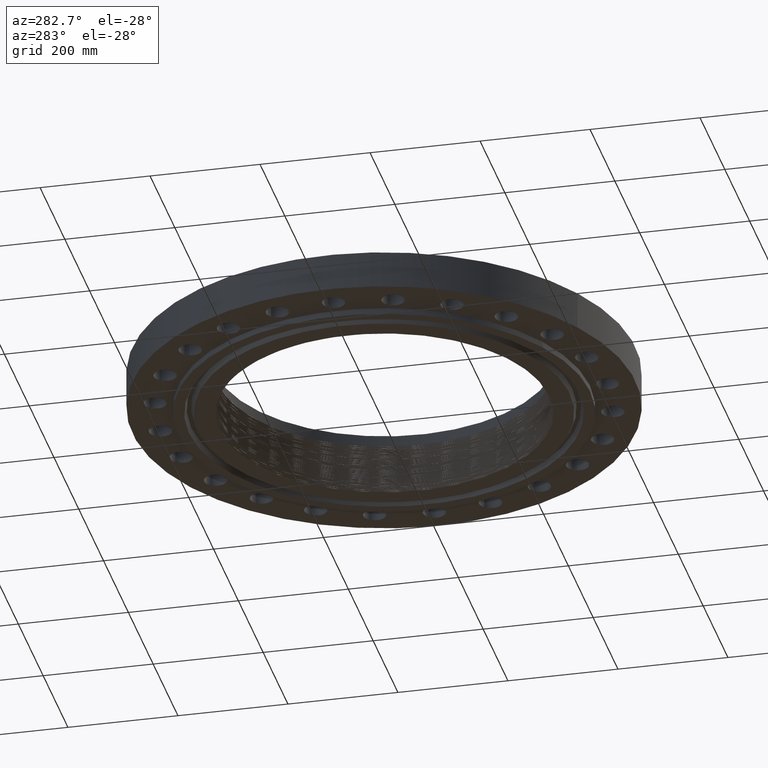
[diagram: clean part render]
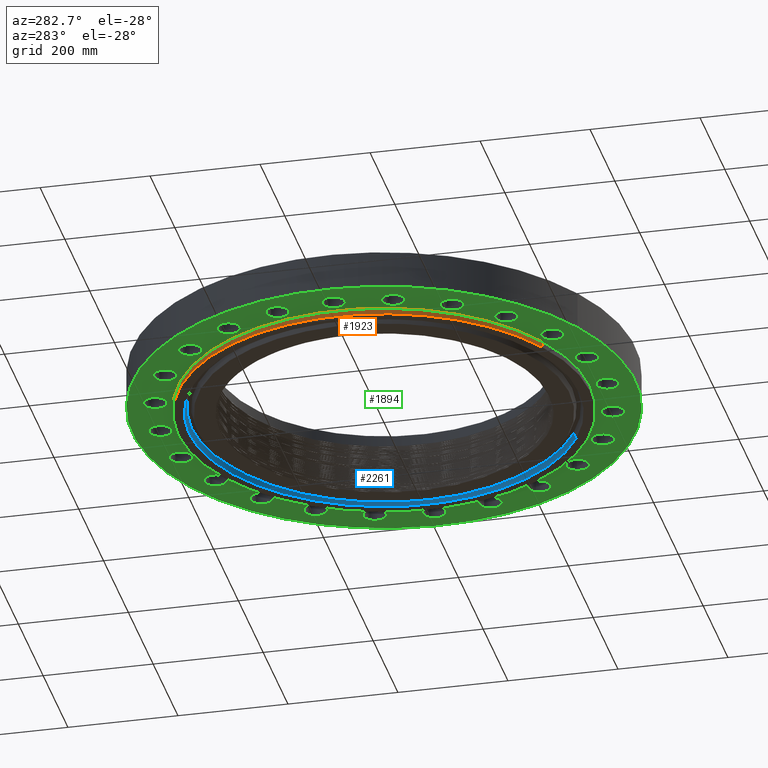
[diagram: same view with three faces highlighted in distinct colors, each labeled with its STEP entity id]
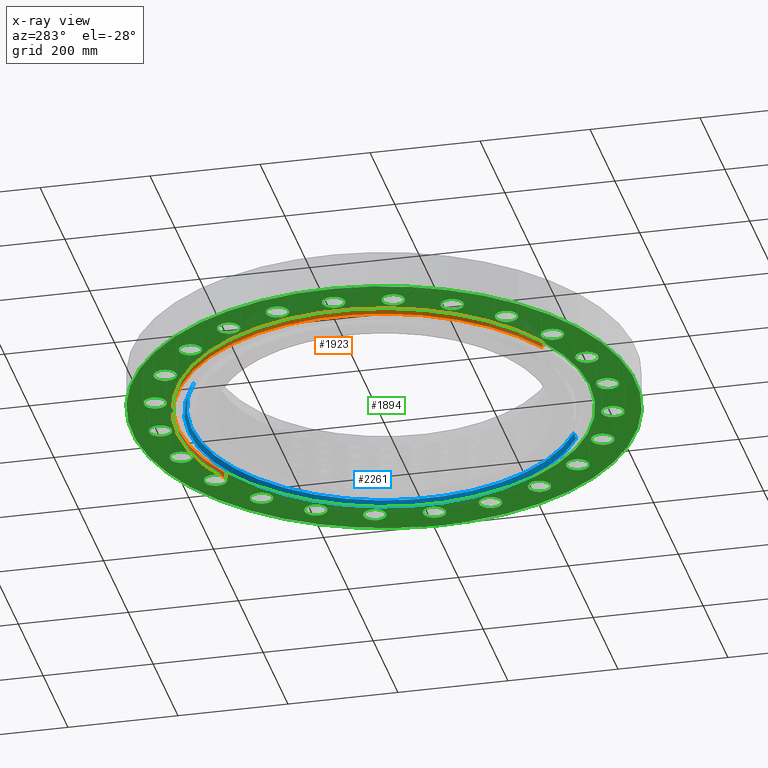
[diagram: x-ray of the same camera — body ghosted, the three highlighted faces saturated]
A machine part, auxiliary view with three faces highlighted in distinct colors.
The next image is the same camera in x-ray (body ghosted, the three faces saturated) — at least one of them is partly hidden behind the body in this view.
Their STEP definitions:

[orange] entity #1923 — the highlighted cylindrical surface (partial cylindrical patch) has radius 374.65 mm, axis along (0, 0, -1).
#406=AXIS2_PLACEMENT_3D('Circle Axis2P3D',#404,#405,$) ;
#1795=AXIS2_PLACEMENT_3D('Circle Axis2P3D',#1793,#1794,$) ;
#1898=AXIS2_PLACEMENT_3D('Cylinder Axis2P3D',#1895,#1896,#1897) ;
#399=CARTESIAN_POINT('Vertex',(7.07152669444,12.9443427879,-0.437500000002)) ;
#401=CARTESIAN_POINT('Vertex',(-7.07152669444,-12.9443427879,-0.437500000002)) ;
#404=CARTESIAN_POINT('Axis2P3D Location',(0.,0.,-0.437500000002)) ;
#1788=CARTESIAN_POINT('Vertex',(7.07152669444,12.9443427879,1.67844740731E-015)) ;
#1790=CARTESIAN_POINT('Vertex',(-7.07152669444,-12.9443427879,1.67844740731E-015)) ;
#1793=CARTESIAN_POINT('Axis2P3D Location',(0.,0.,0.)) ;
#1895=CARTESIAN_POINT('Axis2P3D Location',(0.,0.,1.84625000001)) ;
#1900=CARTESIAN_POINT('Line Origine',(7.07152669444,12.9443427879,-0.218750000001)) ;
#1905=CARTESIAN_POINT('Line Origine',(-7.07152669444,-12.9443427879,-0.218750000001)) ;
#405=DIRECTION('Axis2P3D Direction',(0.,0.,-0.0393700787402)) ;
#1794=DIRECTION('Axis2P3D Direction',(0.,0.,-0.0393700787402)) ;
#1896=DIRECTION('Axis2P3D Direction',(0.,0.,-0.0393700787402)) ;
#1897=DIRECTION('Axis2P3D XDirection',(-0.0188750212049,-0.0345504945626,0.)) ;
#1901=DIRECTION('Vector Direction',(0.,0.,-0.0393700787402)) ;
#1906=DIRECTION('Vector Direction',(0.,0.,-0.0393700787402)) ;
#1902=VECTOR('Line Direction',#1901,0.0393700787402) ;
#1907=VECTOR('Line Direction',#1906,0.0393700787402) ;
#1918=ORIENTED_EDGE('',*,*,#408,.F.) ;
#1919=ORIENTED_EDGE('',*,*,#1909,.T.) ;
#1920=ORIENTED_EDGE('',*,*,#1797,.T.) ;
#1921=ORIENTED_EDGE('',*,*,#1904,.F.) ;
#1923=ADVANCED_FACE('PartBody',(#1922),#1899,.T.) ;
#407=CIRCLE('generated circle',#406,14.7500000001) ;
#1796=CIRCLE('generated circle',#1795,14.7500000001) ;
#1899=CYLINDRICAL_SURFACE('generated cylinder',#1898,14.7500000001) ;
#408=EDGE_CURVE('',#402,#400,#407,.T.) ;
#1797=EDGE_CURVE('',#1791,#1789,#1796,.T.) ;
#1904=EDGE_CURVE('',#400,#1789,#1903,.F.) ;
#1909=EDGE_CURVE('',#402,#1791,#1908,.F.) ;
#1917=EDGE_LOOP('',(#1918,#1919,#1920,#1921)) ;
#1922=FACE_OUTER_BOUND('',#1917,.T.) ;
#1903=LINE('Line',#1900,#1902) ;
#1908=LINE('Line',#1905,#1907) ;
#400=VERTEX_POINT('',#399) ;
#402=VERTEX_POINT('',#401) ;
#1789=VERTEX_POINT('',#1788) ;
#1791=VERTEX_POINT('',#1790) ;

[blue] entity #2261 — the highlighted conical surface has half-angle 23 deg.
#424=AXIS2_PLACEMENT_3D('Circle Axis2P3D',#422,#423,$) ;
#2196=AXIS2_PLACEMENT_3D('Cone Axis2P3D',#2193,#2194,#2195) ;
#2217=AXIS2_PLACEMENT_3D('Circle Axis2P3D',#2215,#2216,$) ;
#417=CARTESIAN_POINT('Vertex',(6.689496454,-12.2450411235,-0.437500000002)) ;
#419=CARTESIAN_POINT('Vertex',(-6.689496454,12.2450411235,-0.437500000002)) ;
#422=CARTESIAN_POINT('Axis2P3D Location',(-5.59482469102E-016,1.1189649382E-015,-0.437500000002)) ;
#2162=CARTESIAN_POINT('Vertex',(-6.60821271786,12.0962522425,-0.0380793044696)) ;
#2164=CARTESIAN_POINT('Vertex',(6.60821271786,-12.0962522425,-0.0380793044696)) ;
#2193=CARTESIAN_POINT('Axis2P3D Location',(0.,0.,-0.0380793044696)) ;
#2198=CARTESIAN_POINT('Line Origine',(-6.64885458593,12.170646683,-0.237789652236)) ;
#2203=CARTESIAN_POINT('Line Origine',(6.64885458593,-12.170646683,-0.237789652236)) ;
#2215=CARTESIAN_POINT('Axis2P3D Location',(0.,0.,-0.0380793044696)) ;
#423=DIRECTION('Axis2P3D Direction',(0.,0.,-0.0393700787402)) ;
#2194=DIRECTION('Axis2P3D Direction',(-0.,-0.,-0.0393700787402)) ;
#2195=DIRECTION('Axis2P3D XDirection',(-0.0188750212049,0.0345504945626,0.)) ;
#2199=DIRECTION('Vector Direction',(-0.00737505833565,0.0134999537303,-0.0362403485611)) ;
#2204=DIRECTION('Vector Direction',(0.00737505833565,-0.0134999537303,-0.0362403485611)) ;
#2216=DIRECTION('Axis2P3D Direction',(0.,0.,0.0393700787402)) ;
#2200=VECTOR('Line Direction',#2199,0.0393700787402) ;
#2205=VECTOR('Line Direction',#2204,0.0393700787402) ;
#2256=ORIENTED_EDGE('',*,*,#426,.T.) ;
#2257=ORIENTED_EDGE('',*,*,#2207,.T.) ;
#2258=ORIENTED_EDGE('',*,*,#2219,.T.) ;
#2259=ORIENTED_EDGE('',*,*,#2202,.F.) ;
#2261=ADVANCED_FACE('PartBody',(#2260),#2197,.F.) ;
#425=CIRCLE('generated circle',#424,13.9531500001) ;
#2218=CIRCLE('generated circle',#2217,13.7836059737) ;
#2197=CONICAL_SURFACE('Cone',#2196,13.7836059737,0.401425727959) ;
#426=EDGE_CURVE('',#420,#418,#425,.T.) ;
#2202=EDGE_CURVE('',#420,#2163,#2201,.F.) ;
#2207=EDGE_CURVE('',#418,#2165,#2206,.F.) ;
#2219=EDGE_CURVE('',#2165,#2163,#2218,.T.) ;
#2255=EDGE_LOOP('',(#2256,#2257,#2258,#2259)) ;
#2260=FACE_OUTER_BOUND('',#2255,.T.) ;
#2201=LINE('Line',#2198,#2200) ;
#2206=LINE('Line',#2203,#2205) ;
#418=VERTEX_POINT('',#417) ;
#420=VERTEX_POINT('',#419) ;
#2163=VERTEX_POINT('',#2162) ;
#2165=VERTEX_POINT('',#2164) ;

[green] entity #1894 — the highlighted planar face has unit normal (0, 0, -1).
#448=AXIS2_PLACEMENT_3D('Circle Axis2P3D',#446,#447,$) ;
#474=AXIS2_PLACEMENT_3D('Circle Axis2P3D',#472,#473,$) ;
#505=AXIS2_PLACEMENT_3D('Circle Axis2P3D',#503,#504,$) ;
#531=AXIS2_PLACEMENT_3D('Circle Axis2P3D',#529,#530,$) ;
#562=AXIS2_PLACEMENT_3D('Circle Axis2P3D',#560,#561,$) ;
#588=AXIS2_PLACEMENT_3D('Circle Axis2P3D',#586,#587,$) ;
#619=AXIS2_PLACEMENT_3D('Circle Axis2P3D',#617,#618,$) ;
#645=AXIS2_PLACEMENT_3D('Circle Axis2P3D',#643,#644,$) ;
#676=AXIS2_PLACEMENT_3D('Circle Axis2P3D',#674,#675,$) ;
#702=AXIS2_PLACEMENT_3D('Circle Axis2P3D',#700,#701,$) ;
#733=AXIS2_PLACEMENT_3D('Circle Axis2P3D',#731,#732,$) ;
#759=AXIS2_PLACEMENT_3D('Circle Axis2P3D',#757,#758,$) ;
#790=AXIS2_PLACEMENT_3D('Circle Axis2P3D',#788,#789,$) ;
#816=AXIS2_PLACEMENT_3D('Circle Axis2P3D',#814,#815,$) ;
#847=AXIS2_PLACEMENT_3D('Circle Axis2P3D',#845,#846,$) ;
#873=AXIS2_PLACEMENT_3D('Circle Axis2P3D',#871,#872,$) ;
#904=AXIS2_PLACEMENT_3D('Circle Axis2P3D',#902,#903,$) ;
#930=AXIS2_PLACEMENT_3D('Circle Axis2P3D',#928,#929,$) ;
#961=AXIS2_PLACEMENT_3D('Circle Axis2P3D',#959,#960,$) ;
#987=AXIS2_PLACEMENT_3D('Circle Axis2P3D',#985,#986,$) ;
#1018=AXIS2_PLACEMENT_3D('Circle Axis2P3D',#1016,#1017,$) ;
#1044=AXIS2_PLACEMENT_3D('Circle Axis2P3D',#1042,#1043,$) ;
#1075=AXIS2_PLACEMENT_3D('Circle Axis2P3D',#1073,#1074,$) ;
#1101=AXIS2_PLACEMENT_3D('Circle Axis2P3D',#1099,#1100,$) ;
#1132=AXIS2_PLACEMENT_3D('Circle Axis2P3D',#1130,#1131,$) ;
#1158=AXIS2_PLACEMENT_3D('Circle Axis2P3D',#1156,#1157,$) ;
#1189=AXIS2_PLACEMENT_3D('Circle Axis2P3D',#1187,#1188,$) ;
#1215=AXIS2_PLACEMENT_3D('Circle Axis2P3D',#1213,#1214,$) ;
#1246=AXIS2_PLACEMENT_3D('Circle Axis2P3D',#1244,#1245,$) ;
#1272=AXIS2_PLACEMENT_3D('Circle Axis2P3D',#1270,#1271,$) ;
#1303=AXIS2_PLACEMENT_3D('Circle Axis2P3D',#1301,#1302,$) ;
#1329=AXIS2_PLACEMENT_3D('Circle Axis2P3D',#1327,#1328,$) ;
#1360=AXIS2_PLACEMENT_3D('Circle Axis2P3D',#1358,#1359,$) ;
#1386=AXIS2_PLACEMENT_3D('Circle Axis2P3D',#1384,#1385,$) ;
#1417=AXIS2_PLACEMENT_3D('Circle Axis2P3D',#1415,#1416,$) ;
#1443=AXIS2_PLACEMENT_3D('Circle Axis2P3D',#1441,#1442,$) ;
#1474=AXIS2_PLACEMENT_3D('Circle Axis2P3D',#1472,#1473,$) ;
#1500=AXIS2_PLACEMENT_3D('Circle Axis2P3D',#1498,#1499,$) ;
#1531=AXIS2_PLACEMENT_3D('Circle Axis2P3D',#1529,#1530,$) ;
#1557=AXIS2_PLACEMENT_3D('Circle Axis2P3D',#1555,#1556,$) ;
#1588=AXIS2_PLACEMENT_3D('Circle Axis2P3D',#1586,#1587,$) ;
#1614=AXIS2_PLACEMENT_3D('Circle Axis2P3D',#1612,#1613,$) ;
#1645=AXIS2_PLACEMENT_3D('Circle Axis2P3D',#1643,#1644,$) ;
#1671=AXIS2_PLACEMENT_3D('Circle Axis2P3D',#1669,#1670,$) ;
#1702=AXIS2_PLACEMENT_3D('Circle Axis2P3D',#1700,#1701,$) ;
#1728=AXIS2_PLACEMENT_3D('Circle Axis2P3D',#1726,#1727,$) ;
#1746=AXIS2_PLACEMENT_3D('Plane Axis2P3D',#1743,#1744,#1745) ;
#1750=AXIS2_PLACEMENT_3D('Circle Axis2P3D',#1748,#1749,$) ;
#1759=AXIS2_PLACEMENT_3D('Circle Axis2P3D',#1757,#1758,$) ;
#1768=AXIS2_PLACEMENT_3D('Circle Axis2P3D',#1766,#1767,$) ;
#1777=AXIS2_PLACEMENT_3D('Circle Axis2P3D',#1775,#1776,$) ;
#1786=AXIS2_PLACEMENT_3D('Circle Axis2P3D',#1784,#1785,$) ;
#1795=AXIS2_PLACEMENT_3D('Circle Axis2P3D',#1793,#1794,$) ;
#441=CARTESIAN_POINT('Vertex',(4.73083481058,14.8922801797,0.)) ;
#446=CARTESIAN_POINT('Axis2P3D Location',(4.14110472166,15.4548132207,0.)) ;
#450=CARTESIAN_POINT('Vertex',(3.55137463273,16.0173462617,0.)) ;
#472=CARTESIAN_POINT('Axis2P3D Location',(4.14110472166,15.4548132207,0.)) ;
#498=CARTESIAN_POINT('Vertex',(-0.715229787944,-15.6092681861,0.)) ;
#503=CARTESIAN_POINT('Axis2P3D Location',(1.95943487864E-015,-16.0000000001,0.)) ;
#507=CARTESIAN_POINT('Vertex',(0.715229787944,-16.390731814,0.)) ;
#529=CARTESIAN_POINT('Axis2P3D Location',(1.95943487864E-015,-16.0000000001,0.)) ;
#555=CARTESIAN_POINT('Vertex',(-3.34911696277,15.2625103612,0.)) ;
#560=CARTESIAN_POINT('Axis2P3D Location',(-4.14110472166,15.4548132207,0.)) ;
#564=CARTESIAN_POINT('Vertex',(-4.93309248054,15.6471160802,0.)) ;
#586=CARTESIAN_POINT('Axis2P3D Location',(-4.14110472166,15.4548132207,0.)) ;
#612=CARTESIAN_POINT('Vertex',(3.34911696277,-15.2625103612,0.)) ;
#617=CARTESIAN_POINT('Axis2P3D Location',(4.14110472166,-15.4548132207,0.)) ;
#621=CARTESIAN_POINT('Vertex',(4.93309248054,-15.6471160802,0.)) ;
#643=CARTESIAN_POINT('Axis2P3D Location',(4.14110472166,-15.4548132207,0.)) ;
#669=CARTESIAN_POINT('Vertex',(-7.18522692715,13.8756376776,0.)) ;
#674=CARTESIAN_POINT('Axis2P3D Location',(-8.00000000003,13.8564064606,0.)) ;
#678=CARTESIAN_POINT('Vertex',(-8.81477307292,13.8371752436,0.)) ;
#700=CARTESIAN_POINT('Axis2P3D Location',(-8.00000000003,13.8564064606,0.)) ;
#726=CARTESIAN_POINT('Vertex',(7.18522692715,-13.8756376776,0.)) ;
#731=CARTESIAN_POINT('Axis2P3D Location',(8.00000000003,-13.8564064606,0.)) ;
#735=CARTESIAN_POINT('Vertex',(8.81477307292,-13.8371752436,0.)) ;
#757=CARTESIAN_POINT('Axis2P3D Location',(8.00000000003,-13.8564064606,0.)) ;
#783=CARTESIAN_POINT('Vertex',(-10.5316755506,11.5431632169,0.)) ;
#788=CARTESIAN_POINT('Axis2P3D Location',(-11.313708499,11.313708499,0.)) ;
#792=CARTESIAN_POINT('Vertex',(-12.0957414475,11.0842537811,0.)) ;
#814=CARTESIAN_POINT('Axis2P3D Location',(-11.313708499,11.313708499,0.)) ;
#840=CARTESIAN_POINT('Vertex',(10.5316755506,-11.5431632169,0.)) ;
#845=CARTESIAN_POINT('Axis2P3D Location',(11.313708499,-11.313708499,0.)) ;
#849=CARTESIAN_POINT('Vertex',(12.0957414475,-11.0842537811,0.)) ;
#871=CARTESIAN_POINT('Axis2P3D Location',(11.313708499,-11.313708499,0.)) ;
#897=CARTESIAN_POINT('Vertex',(-13.1604078897,8.42404125895,0.)) ;
#902=CARTESIAN_POINT('Axis2P3D Location',(-13.8564064606,8.00000000003,0.)) ;
#906=CARTESIAN_POINT('Vertex',(-14.5524050315,7.57595874111,0.)) ;
#928=CARTESIAN_POINT('Axis2P3D Location',(-13.8564064606,8.00000000003,0.)) ;
#954=CARTESIAN_POINT('Vertex',(13.1604078897,-8.42404125895,-2.23792987641E-015)) ;
#959=CARTESIAN_POINT('Axis2P3D Location',(13.8564064606,-8.00000000003,-2.23792987641E-015)) ;
#963=CARTESIAN_POINT('Vertex',(14.5524050315,-7.57595874111,0.)) ;
#985=CARTESIAN_POINT('Axis2P3D Location',(13.8564064606,-8.00000000003,-2.23792987641E-015)) ;
#1011=CARTESIAN_POINT('Vertex',(-14.8922801797,4.73083481058,0.)) ;
#1016=CARTESIAN_POINT('Axis2P3D Location',(-15.4548132207,4.14110472166,0.)) ;
#1020=CARTESIAN_POINT('Vertex',(-16.0173462617,3.55137463273,0.)) ;
#1042=CARTESIAN_POINT('Axis2P3D Location',(-15.4548132207,4.14110472166,0.)) ;
#1068=CARTESIAN_POINT('Vertex',(14.8922801797,-4.73083481058,-1.1189649382E-015)) ;
#1073=CARTESIAN_POINT('Axis2P3D Location',(15.4548132207,-4.14110472166,-1.1189649382E-015)) ;
#1077=CARTESIAN_POINT('Vertex',(16.0173462617,-3.55137463273,0.)) ;
#1099=CARTESIAN_POINT('Axis2P3D Location',(15.4548132207,-4.14110472166,-1.1189649382E-015)) ;
#1125=CARTESIAN_POINT('Vertex',(-15.6092681861,0.715229787944,0.)) ;
#1130=CARTESIAN_POINT('Axis2P3D Location',(-16.0000000001,-7.01222441556E-016,0.)) ;
#1134=CARTESIAN_POINT('Vertex',(-16.390731814,-0.715229787944,0.)) ;
#1156=CARTESIAN_POINT('Axis2P3D Location',(-16.0000000001,-7.01222441556E-016,0.)) ;
#1182=CARTESIAN_POINT('Vertex',(15.6092681861,-0.715229787944,0.)) ;
#1187=CARTESIAN_POINT('Axis2P3D Location',(16.0000000001,9.79717439322E-016,0.)) ;
#1191=CARTESIAN_POINT('Vertex',(16.390731814,0.715229787944,0.)) ;
#1213=CARTESIAN_POINT('Axis2P3D Location',(16.0000000001,9.79717439322E-016,0.)) ;
#1239=CARTESIAN_POINT('Vertex',(-15.2625103612,-3.34911696277,0.)) ;
#1244=CARTESIAN_POINT('Axis2P3D Location',(-15.4548132207,-4.14110472166,0.)) ;
#1248=CARTESIAN_POINT('Vertex',(-15.6471160802,-4.93309248054,0.)) ;
#1270=CARTESIAN_POINT('Axis2P3D Location',(-15.4548132207,-4.14110472166,0.)) ;
#1296=CARTESIAN_POINT('Vertex',(15.2625103612,3.34911696277,0.)) ;
#1301=CARTESIAN_POINT('Axis2P3D Location',(15.4548132207,4.14110472166,0.)) ;
#1305=CARTESIAN_POINT('Vertex',(15.6471160802,4.93309248054,0.)) ;
#1327=CARTESIAN_POINT('Axis2P3D Location',(15.4548132207,4.14110472166,0.)) ;
#1353=CARTESIAN_POINT('Vertex',(-13.8756376776,-7.18522692715,0.)) ;
#1358=CARTESIAN_POINT('Axis2P3D Location',(-13.8564064606,-8.00000000003,0.)) ;
#1362=CARTESIAN_POINT('Vertex',(-13.8371752436,-8.81477307292,0.)) ;
#1384=CARTESIAN_POINT('Axis2P3D Location',(-13.8564064606,-8.00000000003,0.)) ;
#1410=CARTESIAN_POINT('Vertex',(13.8756376776,7.18522692715,0.)) ;
#1415=CARTESIAN_POINT('Axis2P3D Location',(13.8564064606,8.00000000003,0.)) ;
#1419=CARTESIAN_POINT('Vertex',(13.8371752436,8.81477307292,0.)) ;
#1441=CARTESIAN_POINT('Axis2P3D Location',(13.8564064606,8.00000000003,0.)) ;
#1467=CARTESIAN_POINT('Vertex',(-11.5431632169,-10.5316755506,0.)) ;
#1472=CARTESIAN_POINT('Axis2P3D Location',(-11.313708499,-11.313708499,0.)) ;
#1476=CARTESIAN_POINT('Vertex',(-11.0842537811,-12.0957414475,0.)) ;
#1498=CARTESIAN_POINT('Axis2P3D Location',(-11.313708499,-11.313708499,0.)) ;
#1524=CARTESIAN_POINT('Vertex',(11.5431632169,10.5316755506,0.)) ;
#1529=CARTESIAN_POINT('Axis2P3D Location',(11.313708499,11.313708499,0.)) ;
#1533=CARTESIAN_POINT('Vertex',(11.0842537811,12.0957414475,0.)) ;
#1555=CARTESIAN_POINT('Axis2P3D Location',(11.313708499,11.313708499,0.)) ;
#1581=CARTESIAN_POINT('Vertex',(-8.42404125895,-13.1604078897,0.)) ;
#1586=CARTESIAN_POINT('Axis2P3D Location',(-8.00000000003,-13.8564064606,0.)) ;
#1590=CARTESIAN_POINT('Vertex',(-7.57595874111,-14.5524050315,0.)) ;
#1612=CARTESIAN_POINT('Axis2P3D Location',(-8.00000000003,-13.8564064606,0.)) ;
#1638=CARTESIAN_POINT('Vertex',(8.42404125895,13.1604078897,0.)) ;
#1643=CARTESIAN_POINT('Axis2P3D Location',(8.00000000003,13.8564064606,0.)) ;
#1647=CARTESIAN_POINT('Vertex',(7.57595874111,14.5524050315,0.)) ;
#1669=CARTESIAN_POINT('Axis2P3D Location',(8.00000000003,13.8564064606,0.)) ;
#1695=CARTESIAN_POINT('Vertex',(-4.73083481058,-14.8922801797,0.)) ;
#1700=CARTESIAN_POINT('Axis2P3D Location',(-4.14110472166,-15.4548132207,0.)) ;
#1704=CARTESIAN_POINT('Vertex',(-3.55137463273,-16.0173462617,0.)) ;
#1726=CARTESIAN_POINT('Axis2P3D Location',(-4.14110472166,-15.4548132207,0.)) ;
#1743=CARTESIAN_POINT('Axis2P3D Location',(0.,14.7500000001,0.)) ;
#1748=CARTESIAN_POINT('Axis2P3D Location',(0.,0.,0.)) ;
#1752=CARTESIAN_POINT('Vertex',(-8.62965969491,-15.7964861141,1.1189649382E-015)) ;
#1754=CARTESIAN_POINT('Vertex',(8.62965969491,15.7964861141,1.1189649382E-015)) ;
#1757=CARTESIAN_POINT('Axis2P3D Location',(0.,0.,0.)) ;
#1766=CARTESIAN_POINT('Axis2P3D Location',(3.84644197508E-016,16.0000000001,0.)) ;
#1770=CARTESIAN_POINT('Vertex',(0.715229787944,15.6092681861,0.)) ;
#1772=CARTESIAN_POINT('Vertex',(-0.715229787944,16.390731814,0.)) ;
#1775=CARTESIAN_POINT('Axis2P3D Location',(1.39870617276E-016,16.0000000001,0.)) ;
#1784=CARTESIAN_POINT('Axis2P3D Location',(0.,0.,0.)) ;
#1788=CARTESIAN_POINT('Vertex',(7.07152669444,12.9443427879,1.67844740731E-015)) ;
#1790=CARTESIAN_POINT('Vertex',(-7.07152669444,-12.9443427879,1.67844740731E-015)) ;
#1793=CARTESIAN_POINT('Axis2P3D Location',(0.,0.,0.)) ;
#447=DIRECTION('Axis2P3D Direction',(0.,-0.,-0.0393700787402)) ;
#473=DIRECTION('Axis2P3D Direction',(0.,-0.,-0.0393700787402)) ;
#504=DIRECTION('Axis2P3D Direction',(-0.,0.,-0.0393700787402)) ;
#530=DIRECTION('Axis2P3D Direction',(-0.,0.,-0.0393700787402)) ;
#561=DIRECTION('Axis2P3D Direction',(0.,0.,-0.0393700787402)) ;
#587=DIRECTION('Axis2P3D Direction',(0.,0.,-0.0393700787402)) ;
#618=DIRECTION('Axis2P3D Direction',(-0.,0.,-0.0393700787402)) ;
#644=DIRECTION('Axis2P3D Direction',(-0.,0.,-0.0393700787402)) ;
#675=DIRECTION('Axis2P3D Direction',(0.,0.,-0.0393700787402)) ;
#701=DIRECTION('Axis2P3D Direction',(0.,0.,-0.0393700787402)) ;
#732=DIRECTION('Axis2P3D Direction',(-0.,0.,-0.0393700787402)) ;
#758=DIRECTION('Axis2P3D Direction',(-0.,0.,-0.0393700787402)) ;
#789=DIRECTION('Axis2P3D Direction',(0.,0.,-0.0393700787402)) ;
#815=DIRECTION('Axis2P3D Direction',(0.,0.,-0.0393700787402)) ;
#846=DIRECTION('Axis2P3D Direction',(-0.,0.,-0.0393700787402)) ;
#872=DIRECTION('Axis2P3D Direction',(-0.,0.,-0.0393700787402)) ;
#903=DIRECTION('Axis2P3D Direction',(0.,0.,-0.0393700787402)) ;
#929=DIRECTION('Axis2P3D Direction',(0.,0.,-0.0393700787402)) ;
#960=DIRECTION('Axis2P3D Direction',(-0.,0.,-0.0393700787402)) ;
#986=DIRECTION('Axis2P3D Direction',(-0.,0.,-0.0393700787402)) ;
#1017=DIRECTION('Axis2P3D Direction',(0.,0.,-0.0393700787402)) ;
#1043=DIRECTION('Axis2P3D Direction',(0.,0.,-0.0393700787402)) ;
#1074=DIRECTION('Axis2P3D Direction',(-0.,0.,-0.0393700787402)) ;
#1100=DIRECTION('Axis2P3D Direction',(-0.,0.,-0.0393700787402)) ;
#1131=DIRECTION('Axis2P3D Direction',(0.,0.,-0.0393700787402)) ;
#1157=DIRECTION('Axis2P3D Direction',(0.,0.,-0.0393700787402)) ;
#1188=DIRECTION('Axis2P3D Direction',(0.,-0.,-0.0393700787402)) ;
#1214=DIRECTION('Axis2P3D Direction',(0.,-0.,-0.0393700787402)) ;
#1245=DIRECTION('Axis2P3D Direction',(0.,0.,-0.0393700787402)) ;
#1271=DIRECTION('Axis2P3D Direction',(0.,0.,-0.0393700787402)) ;
#1302=DIRECTION('Axis2P3D Direction',(0.,-0.,-0.0393700787402)) ;
#1328=DIRECTION('Axis2P3D Direction',(0.,-0.,-0.0393700787402)) ;
#1359=DIRECTION('Axis2P3D Direction',(0.,0.,-0.0393700787402)) ;
#1385=DIRECTION('Axis2P3D Direction',(0.,0.,-0.0393700787402)) ;
#1416=DIRECTION('Axis2P3D Direction',(0.,-0.,-0.0393700787402)) ;
#1442=DIRECTION('Axis2P3D Direction',(0.,-0.,-0.0393700787402)) ;
#1473=DIRECTION('Axis2P3D Direction',(0.,0.,-0.0393700787402)) ;
#1499=DIRECTION('Axis2P3D Direction',(0.,0.,-0.0393700787402)) ;
#1530=DIRECTION('Axis2P3D Direction',(0.,-0.,-0.0393700787402)) ;
#1556=DIRECTION('Axis2P3D Direction',(0.,-0.,-0.0393700787402)) ;
#1587=DIRECTION('Axis2P3D Direction',(0.,0.,-0.0393700787402)) ;
#1613=DIRECTION('Axis2P3D Direction',(0.,0.,-0.0393700787402)) ;
#1644=DIRECTION('Axis2P3D Direction',(0.,-0.,-0.0393700787402)) ;
#1670=DIRECTION('Axis2P3D Direction',(0.,-0.,-0.0393700787402)) ;
#1701=DIRECTION('Axis2P3D Direction',(0.,0.,-0.0393700787402)) ;
#1727=DIRECTION('Axis2P3D Direction',(0.,0.,-0.0393700787402)) ;
#1744=DIRECTION('Axis2P3D Direction',(0.,0.,-0.0393700787402)) ;
#1745=DIRECTION('Axis2P3D XDirection',(0.0393700787402,0.,0.)) ;
#1749=DIRECTION('Axis2P3D Direction',(0.,0.,-0.0393700787402)) ;
#1758=DIRECTION('Axis2P3D Direction',(0.,0.,-0.0393700787402)) ;
#1767=DIRECTION('Axis2P3D Direction',(0.,0.,-0.0393700787402)) ;
#1776=DIRECTION('Axis2P3D Direction',(0.,0.,-0.0393700787402)) ;
#1785=DIRECTION('Axis2P3D Direction',(0.,0.,-0.0393700787402)) ;
#1794=DIRECTION('Axis2P3D Direction',(0.,0.,-0.0393700787402)) ;
#1763=ORIENTED_EDGE('',*,*,#1756,.T.) ;
#1764=ORIENTED_EDGE('',*,*,#1761,.T.) ;
#1781=ORIENTED_EDGE('',*,*,#1774,.F.) ;
#1782=ORIENTED_EDGE('',*,*,#1779,.F.) ;
#1799=ORIENTED_EDGE('',*,*,#1792,.F.) ;
#1800=ORIENTED_EDGE('',*,*,#1797,.F.) ;
#1803=ORIENTED_EDGE('',*,*,#476,.F.) ;
#1804=ORIENTED_EDGE('',*,*,#452,.F.) ;
#1807=ORIENTED_EDGE('',*,*,#1673,.F.) ;
#1808=ORIENTED_EDGE('',*,*,#1649,.F.) ;
#1811=ORIENTED_EDGE('',*,*,#1559,.F.) ;
#1812=ORIENTED_EDGE('',*,*,#1535,.F.) ;
#1815=ORIENTED_EDGE('',*,*,#1445,.F.) ;
#1816=ORIENTED_EDGE('',*,*,#1421,.F.) ;
#1819=ORIENTED_EDGE('',*,*,#1331,.F.) ;
#1820=ORIENTED_EDGE('',*,*,#1307,.F.) ;
#1823=ORIENTED_EDGE('',*,*,#1217,.F.) ;
#1824=ORIENTED_EDGE('',*,*,#1193,.F.) ;
#1827=ORIENTED_EDGE('',*,*,#1103,.F.) ;
#1828=ORIENTED_EDGE('',*,*,#1079,.F.) ;
#1831=ORIENTED_EDGE('',*,*,#989,.F.) ;
#1832=ORIENTED_EDGE('',*,*,#965,.F.) ;
#1835=ORIENTED_EDGE('',*,*,#875,.F.) ;
#1836=ORIENTED_EDGE('',*,*,#851,.F.) ;
#1839=ORIENTED_EDGE('',*,*,#761,.F.) ;
#1840=ORIENTED_EDGE('',*,*,#737,.F.) ;
#1843=ORIENTED_EDGE('',*,*,#647,.F.) ;
#1844=ORIENTED_EDGE('',*,*,#623,.F.) ;
#1847=ORIENTED_EDGE('',*,*,#533,.F.) ;
#1848=ORIENTED_EDGE('',*,*,#509,.F.) ;
#1851=ORIENTED_EDGE('',*,*,#1730,.F.) ;
#1852=ORIENTED_EDGE('',*,*,#1706,.F.) ;
#1855=ORIENTED_EDGE('',*,*,#1616,.F.) ;
#1856=ORIENTED_EDGE('',*,*,#1592,.F.) ;
#1859=ORIENTED_EDGE('',*,*,#1502,.F.) ;
#1860=ORIENTED_EDGE('',*,*,#1478,.F.) ;
#1863=ORIENTED_EDGE('',*,*,#1388,.F.) ;
#1864=ORIENTED_EDGE('',*,*,#1364,.F.) ;
#1867=ORIENTED_EDGE('',*,*,#1274,.F.) ;
#1868=ORIENTED_EDGE('',*,*,#1250,.F.) ;
#1871=ORIENTED_EDGE('',*,*,#1160,.F.) ;
#1872=ORIENTED_EDGE('',*,*,#1136,.F.) ;
#1875=ORIENTED_EDGE('',*,*,#1046,.F.) ;
#1876=ORIENTED_EDGE('',*,*,#1022,.F.) ;
#1879=ORIENTED_EDGE('',*,*,#932,.F.) ;
#1880=ORIENTED_EDGE('',*,*,#908,.F.) ;
#1883=ORIENTED_EDGE('',*,*,#818,.F.) ;
#1884=ORIENTED_EDGE('',*,*,#794,.F.) ;
#1887=ORIENTED_EDGE('',*,*,#704,.F.) ;
#1888=ORIENTED_EDGE('',*,*,#680,.F.) ;
#1891=ORIENTED_EDGE('',*,*,#590,.F.) ;
#1892=ORIENTED_EDGE('',*,*,#566,.F.) ;
#1783=FACE_BOUND('',#1780,.T.) ;
#1801=FACE_BOUND('',#1798,.T.) ;
#1805=FACE_BOUND('',#1802,.T.) ;
#1809=FACE_BOUND('',#1806,.T.) ;
#1813=FACE_BOUND('',#1810,.T.) ;
#1817=FACE_BOUND('',#1814,.T.) ;
#1821=FACE_BOUND('',#1818,.T.) ;
#1825=FACE_BOUND('',#1822,.T.) ;
#1829=FACE_BOUND('',#1826,.T.) ;
#1833=FACE_BOUND('',#1830,.T.) ;
#1837=FACE_BOUND('',#1834,.T.) ;
#1841=FACE_BOUND('',#1838,.T.) ;
#1845=FACE_BOUND('',#1842,.T.) ;
#1849=FACE_BOUND('',#1846,.T.) ;
#1853=FACE_BOUND('',#1850,.T.) ;
#1857=FACE_BOUND('',#1854,.T.) ;
#1861=FACE_BOUND('',#1858,.T.) ;
#1865=FACE_BOUND('',#1862,.T.) ;
#1869=FACE_BOUND('',#1866,.T.) ;
#1873=FACE_BOUND('',#1870,.T.) ;
#1877=FACE_BOUND('',#1874,.T.) ;
#1881=FACE_BOUND('',#1878,.T.) ;
#1885=FACE_BOUND('',#1882,.T.) ;
#1889=FACE_BOUND('',#1886,.T.) ;
#1893=FACE_BOUND('',#1890,.T.) ;
#1894=ADVANCED_FACE('PartBody',(#1765,#1783,#1801,#1805,#1809,#1813,#1817,#1821,#1825,#1829,#1833,#1837,#1841,#1845,#1849,#1853,#1857,#1861,#1865,#1869,#1873,#1877,#1881,#1885,#1889,#1893),#1747,.T.) ;
#449=CIRCLE('generated circle',#448,0.815000000003) ;
#475=CIRCLE('generated circle',#474,0.815000000003) ;
#506=CIRCLE('generated circle',#505,0.815000000003) ;
#532=CIRCLE('generated circle',#531,0.815000000003) ;
#563=CIRCLE('generated circle',#562,0.815000000003) ;
#589=CIRCLE('generated circle',#588,0.815000000003) ;
#620=CIRCLE('generated circle',#619,0.815000000003) ;
#646=CIRCLE('generated circle',#645,0.815000000003) ;
#677=CIRCLE('generated circle',#676,0.815000000003) ;
#703=CIRCLE('generated circle',#702,0.815000000003) ;
#734=CIRCLE('generated circle',#733,0.815000000003) ;
#760=CIRCLE('generated circle',#759,0.815000000003) ;
#791=CIRCLE('generated circle',#790,0.815000000003) ;
#817=CIRCLE('generated circle',#816,0.815000000003) ;
#848=CIRCLE('generated circle',#847,0.815000000003) ;
#874=CIRCLE('generated circle',#873,0.815000000003) ;
#905=CIRCLE('generated circle',#904,0.815000000003) ;
#931=CIRCLE('generated circle',#930,0.815000000003) ;
#962=CIRCLE('generated circle',#961,0.815000000003) ;
#988=CIRCLE('generated circle',#987,0.815000000003) ;
#1019=CIRCLE('generated circle',#1018,0.815000000003) ;
#1045=CIRCLE('generated circle',#1044,0.815000000003) ;
#1076=CIRCLE('generated circle',#1075,0.815000000003) ;
#1102=CIRCLE('generated circle',#1101,0.815000000003) ;
#1133=CIRCLE('generated circle',#1132,0.815000000003) ;
#1159=CIRCLE('generated circle',#1158,0.815000000003) ;
#1190=CIRCLE('generated circle',#1189,0.815000000003) ;
#1216=CIRCLE('generated circle',#1215,0.815000000003) ;
#1247=CIRCLE('generated circle',#1246,0.815000000003) ;
#1273=CIRCLE('generated circle',#1272,0.815000000003) ;
#1304=CIRCLE('generated circle',#1303,0.815000000003) ;
#1330=CIRCLE('generated circle',#1329,0.815000000003) ;
#1361=CIRCLE('generated circle',#1360,0.815000000003) ;
#1387=CIRCLE('generated circle',#1386,0.815000000003) ;
#1418=CIRCLE('generated circle',#1417,0.815000000003) ;
#1444=CIRCLE('generated circle',#1443,0.815000000003) ;
#1475=CIRCLE('generated circle',#1474,0.815000000003) ;
#1501=CIRCLE('generated circle',#1500,0.815000000003) ;
#1532=CIRCLE('generated circle',#1531,0.815000000003) ;
#1558=CIRCLE('generated circle',#1557,0.815000000003) ;
#1589=CIRCLE('generated circle',#1588,0.815000000003) ;
#1615=CIRCLE('generated circle',#1614,0.815000000003) ;
#1646=CIRCLE('generated circle',#1645,0.815000000003) ;
#1672=CIRCLE('generated circle',#1671,0.815000000003) ;
#1703=CIRCLE('generated circle',#1702,0.815000000003) ;
#1729=CIRCLE('generated circle',#1728,0.815000000003) ;
#1751=CIRCLE('generated circle',#1750,18.0000000001) ;
#1760=CIRCLE('generated circle',#1759,18.0000000001) ;
#1769=CIRCLE('generated circle',#1768,0.815000000003) ;
#1778=CIRCLE('generated circle',#1777,0.815000000003) ;
#1787=CIRCLE('generated circle',#1786,14.7500000001) ;
#1796=CIRCLE('generated circle',#1795,14.7500000001) ;
#452=EDGE_CURVE('',#442,#451,#449,.T.) ;
#476=EDGE_CURVE('',#451,#442,#475,.T.) ;
#509=EDGE_CURVE('',#499,#508,#506,.T.) ;
#533=EDGE_CURVE('',#508,#499,#532,.T.) ;
#566=EDGE_CURVE('',#556,#565,#563,.T.) ;
#590=EDGE_CURVE('',#565,#556,#589,.T.) ;
#623=EDGE_CURVE('',#613,#622,#620,.T.) ;
#647=EDGE_CURVE('',#622,#613,#646,.T.) ;
#680=EDGE_CURVE('',#670,#679,#677,.T.) ;
#704=EDGE_CURVE('',#679,#670,#703,.T.) ;
#737=EDGE_CURVE('',#727,#736,#734,.T.) ;
#761=EDGE_CURVE('',#736,#727,#760,.T.) ;
#794=EDGE_CURVE('',#784,#793,#791,.T.) ;
#818=EDGE_CURVE('',#793,#784,#817,.T.) ;
#851=EDGE_CURVE('',#841,#850,#848,.T.) ;
#875=EDGE_CURVE('',#850,#841,#874,.T.) ;
#908=EDGE_CURVE('',#898,#907,#905,.T.) ;
#932=EDGE_CURVE('',#907,#898,#931,.T.) ;
#965=EDGE_CURVE('',#955,#964,#962,.T.) ;
#989=EDGE_CURVE('',#964,#955,#988,.T.) ;
#1022=EDGE_CURVE('',#1012,#1021,#1019,.T.) ;
#1046=EDGE_CURVE('',#1021,#1012,#1045,.T.) ;
#1079=EDGE_CURVE('',#1069,#1078,#1076,.T.) ;
#1103=EDGE_CURVE('',#1078,#1069,#1102,.T.) ;
#1136=EDGE_CURVE('',#1126,#1135,#1133,.T.) ;
#1160=EDGE_CURVE('',#1135,#1126,#1159,.T.) ;
#1193=EDGE_CURVE('',#1183,#1192,#1190,.T.) ;
#1217=EDGE_CURVE('',#1192,#1183,#1216,.T.) ;
#1250=EDGE_CURVE('',#1240,#1249,#1247,.T.) ;
#1274=EDGE_CURVE('',#1249,#1240,#1273,.T.) ;
#1307=EDGE_CURVE('',#1297,#1306,#1304,.T.) ;
#1331=EDGE_CURVE('',#1306,#1297,#1330,.T.) ;
#1364=EDGE_CURVE('',#1354,#1363,#1361,.T.) ;
#1388=EDGE_CURVE('',#1363,#1354,#1387,.T.) ;
#1421=EDGE_CURVE('',#1411,#1420,#1418,.T.) ;
#1445=EDGE_CURVE('',#1420,#1411,#1444,.T.) ;
#1478=EDGE_CURVE('',#1468,#1477,#1475,.T.) ;
#1502=EDGE_CURVE('',#1477,#1468,#1501,.T.) ;
#1535=EDGE_CURVE('',#1525,#1534,#1532,.T.) ;
#1559=EDGE_CURVE('',#1534,#1525,#1558,.T.) ;
#1592=EDGE_CURVE('',#1582,#1591,#1589,.T.) ;
#1616=EDGE_CURVE('',#1591,#1582,#1615,.T.) ;
#1649=EDGE_CURVE('',#1639,#1648,#1646,.T.) ;
#1673=EDGE_CURVE('',#1648,#1639,#1672,.T.) ;
#1706=EDGE_CURVE('',#1696,#1705,#1703,.T.) ;
#1730=EDGE_CURVE('',#1705,#1696,#1729,.T.) ;
#1756=EDGE_CURVE('',#1753,#1755,#1751,.T.) ;
#1761=EDGE_CURVE('',#1755,#1753,#1760,.T.) ;
#1774=EDGE_CURVE('',#1771,#1773,#1769,.T.) ;
#1779=EDGE_CURVE('',#1773,#1771,#1778,.T.) ;
#1792=EDGE_CURVE('',#1789,#1791,#1787,.T.) ;
#1797=EDGE_CURVE('',#1791,#1789,#1796,.T.) ;
#1762=EDGE_LOOP('',(#1763,#1764)) ;
#1780=EDGE_LOOP('',(#1781,#1782)) ;
#1798=EDGE_LOOP('',(#1799,#1800)) ;
#1802=EDGE_LOOP('',(#1803,#1804)) ;
#1806=EDGE_LOOP('',(#1807,#1808)) ;
#1810=EDGE_LOOP('',(#1811,#1812)) ;
#1814=EDGE_LOOP('',(#1815,#1816)) ;
#1818=EDGE_LOOP('',(#1819,#1820)) ;
#1822=EDGE_LOOP('',(#1823,#1824)) ;
#1826=EDGE_LOOP('',(#1827,#1828)) ;
#1830=EDGE_LOOP('',(#1831,#1832)) ;
#1834=EDGE_LOOP('',(#1835,#1836)) ;
#1838=EDGE_LOOP('',(#1839,#1840)) ;
#1842=EDGE_LOOP('',(#1843,#1844)) ;
#1846=EDGE_LOOP('',(#1847,#1848)) ;
#1850=EDGE_LOOP('',(#1851,#1852)) ;
#1854=EDGE_LOOP('',(#1855,#1856)) ;
#1858=EDGE_LOOP('',(#1859,#1860)) ;
#1862=EDGE_LOOP('',(#1863,#1864)) ;
#1866=EDGE_LOOP('',(#1867,#1868)) ;
#1870=EDGE_LOOP('',(#1871,#1872)) ;
#1874=EDGE_LOOP('',(#1875,#1876)) ;
#1878=EDGE_LOOP('',(#1879,#1880)) ;
#1882=EDGE_LOOP('',(#1883,#1884)) ;
#1886=EDGE_LOOP('',(#1887,#1888)) ;
#1890=EDGE_LOOP('',(#1891,#1892)) ;
#1765=FACE_OUTER_BOUND('',#1762,.T.) ;
#1747=PLANE('',#1746) ;
#442=VERTEX_POINT('',#441) ;
#451=VERTEX_POINT('',#450) ;
#499=VERTEX_POINT('',#498) ;
#508=VERTEX_POINT('',#507) ;
#556=VERTEX_POINT('',#555) ;
#565=VERTEX_POINT('',#564) ;
#613=VERTEX_POINT('',#612) ;
#622=VERTEX_POINT('',#621) ;
#670=VERTEX_POINT('',#669) ;
#679=VERTEX_POINT('',#678) ;
#727=VERTEX_POINT('',#726) ;
#736=VERTEX_POINT('',#735) ;
#784=VERTEX_POINT('',#783) ;
#793=VERTEX_POINT('',#792) ;
#841=VERTEX_POINT('',#840) ;
#850=VERTEX_POINT('',#849) ;
#898=VERTEX_POINT('',#897) ;
#907=VERTEX_POINT('',#906) ;
#955=VERTEX_POINT('',#954) ;
#964=VERTEX_POINT('',#963) ;
#1012=VERTEX_POINT('',#1011) ;
#1021=VERTEX_POINT('',#1020) ;
#1069=VERTEX_POINT('',#1068) ;
#1078=VERTEX_POINT('',#1077) ;
#1126=VERTEX_POINT('',#1125) ;
#1135=VERTEX_POINT('',#1134) ;
#1183=VERTEX_POINT('',#1182) ;
#1192=VERTEX_POINT('',#1191) ;
#1240=VERTEX_POINT('',#1239) ;
#1249=VERTEX_POINT('',#1248) ;
#1297=VERTEX_POINT('',#1296) ;
#1306=VERTEX_POINT('',#1305) ;
#1354=VERTEX_POINT('',#1353) ;
#1363=VERTEX_POINT('',#1362) ;
#1411=VERTEX_POINT('',#1410) ;
#1420=VERTEX_POINT('',#1419) ;
#1468=VERTEX_POINT('',#1467) ;
#1477=VERTEX_POINT('',#1476) ;
#1525=VERTEX_POINT('',#1524) ;
#1534=VERTEX_POINT('',#1533) ;
#1582=VERTEX_POINT('',#1581) ;
#1591=VERTEX_POINT('',#1590) ;
#1639=VERTEX_POINT('',#1638) ;
#1648=VERTEX_POINT('',#1647) ;
#1696=VERTEX_POINT('',#1695) ;
#1705=VERTEX_POINT('',#1704) ;
#1753=VERTEX_POINT('',#1752) ;
#1755=VERTEX_POINT('',#1754) ;
#1771=VERTEX_POINT('',#1770) ;
#1773=VERTEX_POINT('',#1772) ;
#1789=VERTEX_POINT('',#1788) ;
#1791=VERTEX_POINT('',#1790) ;